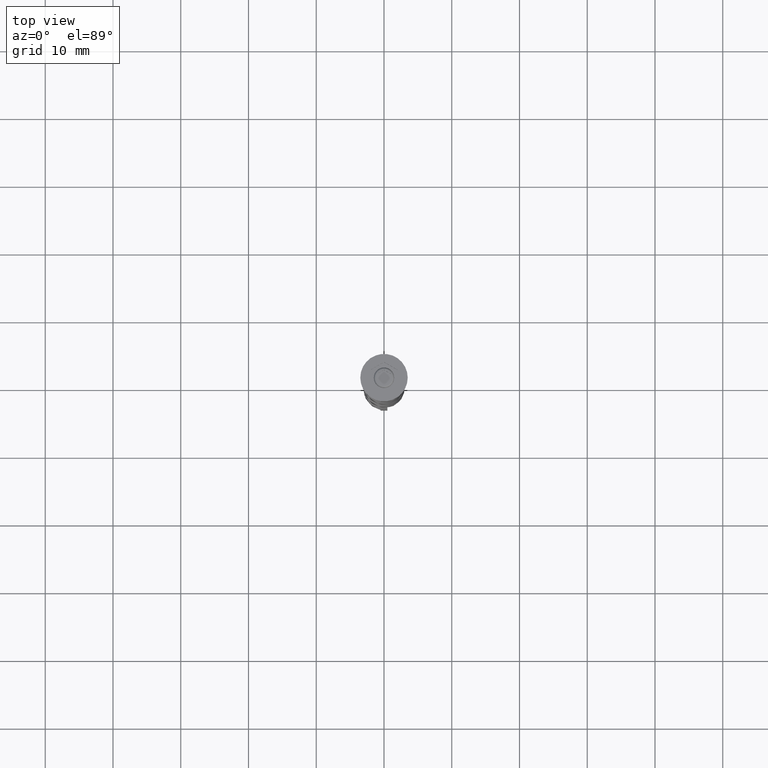
[diagram: clean part render]
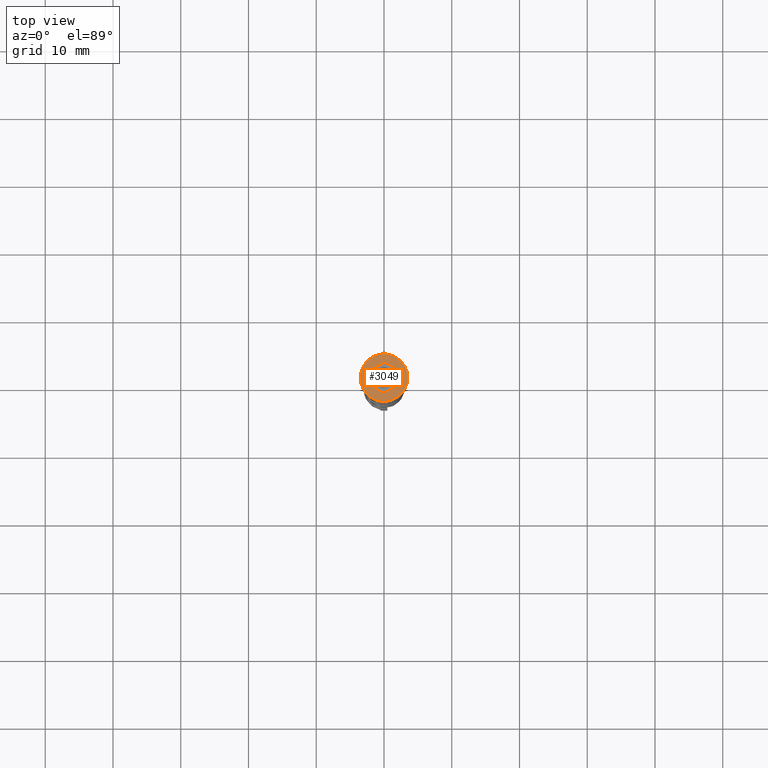
[diagram: same view with one face highlighted and labeled with its STEP entity id]
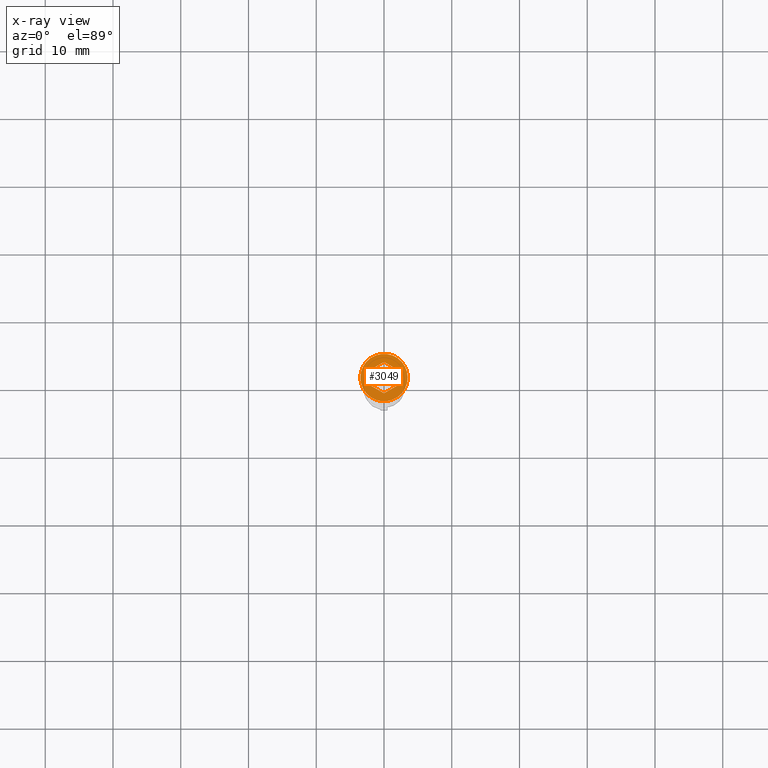
[diagram: x-ray of the same camera — body ghosted, the highlighted face saturated]
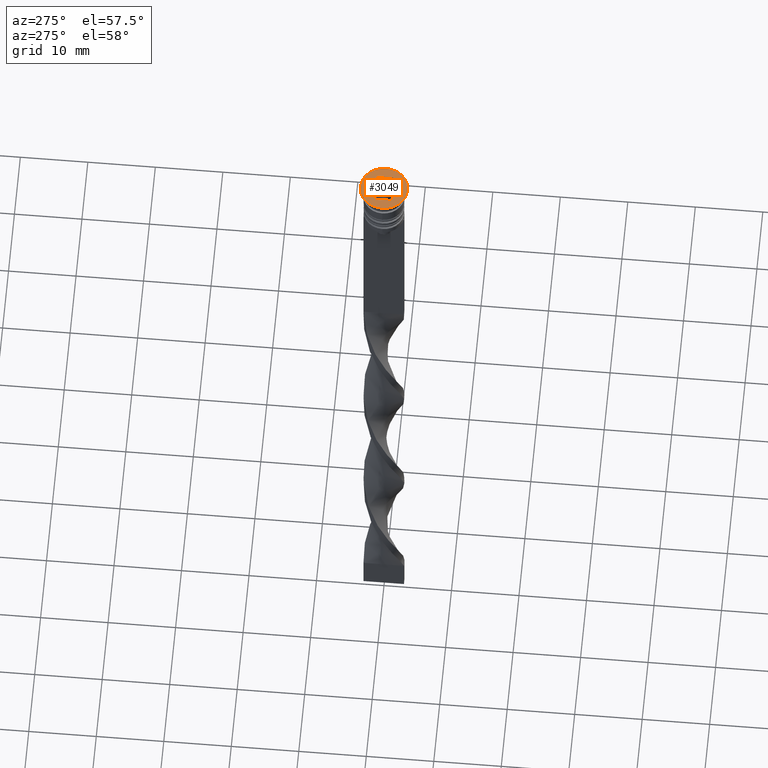
[diagram: same view with one face highlighted and labeled with its STEP entity id]
A machine part, top view. The second image highlights one B-rep face of the part: STEP entity #3049.
The next image is the same camera in x-ray: the body ghosted, the highlighted face saturated — about 0% of this face is hidden behind the body in this view.
A second angle (auxiliary view) of the same face is appended — the face is thin or edge-on in the first view.
In plain terms, the highlighted planar face has unit normal (0, -0, 1).
Its self-contained STEP definition (entity closure, byte-faithful):
#9 = CARTESIAN_POINT ( 'NONE',  ( 0.000000000000000000, 0.000000000000000000, 0.000000000000000000 ) ) ;
#24 = VERTEX_POINT ( 'NONE', #1833 ) ;
#47 = CARTESIAN_POINT ( 'NONE',  ( -2.000000000000000000, -1.154700538379252128, 0.000000000000000000 ) ) ;
#221 = ORIENTED_EDGE ( 'NONE', *, *, #1762, .F. ) ;
#224 = DIRECTION ( 'NONE',  ( 0.000000000000000000, -0.000000000000000000, 1.000000000000000000 ) ) ;
#248 = LINE ( 'NONE', #2435, #3025 ) ;
#281 = DIRECTION ( 'NONE',  ( 1.000000000000000000, 0.000000000000000000, 0.000000000000000000 ) ) ;
#327 = VERTEX_POINT ( 'NONE', #3238 ) ;
#342 = EDGE_CURVE ( 'NONE', #591, #327, #845, .T. ) ;
#487 = CARTESIAN_POINT ( 'NONE',  ( -2.000000000000000000, -1.154700538379252128, 0.000000000000000000 ) ) ;
#582 = LINE ( 'NONE', #47, #2535 ) ;
#590 = CARTESIAN_POINT ( 'NONE',  ( 2.000000000000000000, -1.154700538379251684, 0.000000000000000000 ) ) ;
#591 = VERTEX_POINT ( 'NONE', #2161 ) ;
#622 = ORIENTED_EDGE ( 'NONE', *, *, #1475, .F. ) ;
#768 = CARTESIAN_POINT ( 'NONE',  ( 0.000000000000000000, 0.000000000000000000, 0.000000000000000000 ) ) ;
#770 = CARTESIAN_POINT ( 'NONE',  ( -2.000000000000000000, 1.154700538379251018, 0.000000000000000000 ) ) ;
#845 = LINE ( 'NONE', #590, #2969 ) ;
#1020 = CIRCLE ( 'NONE', #1696, 3.500000000000000000 ) ;
#1022 = EDGE_CURVE ( 'NONE', #24, #1452, #2133, .T. ) ;
#1061 = DIRECTION ( 'NONE',  ( 0.000000000000000000, -1.000000000000000000, 0.000000000000000000 ) ) ;
#1282 = EDGE_LOOP ( 'NONE', ( #2840, #1324 ) ) ;
#1305 = AXIS2_PLACEMENT_3D ( 'NONE', #9, #1870, #281 ) ;
#1324 = ORIENTED_EDGE ( 'NONE', *, *, #2691, .T. ) ;
#1404 = DIRECTION ( 'NONE',  ( 1.000000000000000000, 0.000000000000000000, 0.000000000000000000 ) ) ;
#1432 = EDGE_CURVE ( 'NONE', #1552, #591, #3080, .T. ) ;
#1452 = VERTEX_POINT ( 'NONE', #770 ) ;
#1475 = EDGE_CURVE ( 'NONE', #1452, #1887, #248, .T. ) ;
#1496 = CARTESIAN_POINT ( 'NONE',  ( 3.997386383800531884E-16, -2.309401076758503368, 0.000000000000000000 ) ) ;
#1552 = VERTEX_POINT ( 'NONE', #1908 ) ;
#1654 = DIRECTION ( 'NONE',  ( 0.000000000000000000, 1.000000000000000000, 0.000000000000000000 ) ) ;
#1696 = AXIS2_PLACEMENT_3D ( 'NONE', #1716, #2261, #1404 ) ;
#1716 = CARTESIAN_POINT ( 'NONE',  ( 0.000000000000000000, 0.000000000000000000, 0.000000000000000000 ) ) ;
#1743 = VECTOR ( 'NONE', #2559, 1000.000000000000227 ) ;
#1762 = EDGE_CURVE ( 'NONE', #327, #24, #2728, .T. ) ;
#1815 = DIRECTION ( 'NONE',  ( -0.8660254037844387076, -0.4999999999999999445, 0.000000000000000000 ) ) ;
#1829 = DIRECTION ( 'NONE',  ( 1.000000000000000000, 0.000000000000000000, 0.000000000000000000 ) ) ;
#1833 = CARTESIAN_POINT ( 'NONE',  ( -2.168404344971008868E-16, 2.309401076758502480, 0.000000000000000000 ) ) ;
#1870 = DIRECTION ( 'NONE',  ( -0.000000000000000000, -0.000000000000000000, 1.000000000000000000 ) ) ;
#1887 = VERTEX_POINT ( 'NONE', #487 ) ;
#1908 = CARTESIAN_POINT ( 'NONE',  ( 3.997386383800531884E-16, -2.309401076758503368, 0.000000000000000000 ) ) ;
#1970 = CARTESIAN_POINT ( 'NONE',  ( -3.500000000000000000, 4.286263797015736595E-16, 0.000000000000000000 ) ) ;
#2041 = EDGE_LOOP ( 'NONE', ( #221, #3152, #3262, #2507, #622, #3143 ) ) ;
#2078 = CARTESIAN_POINT ( 'NONE',  ( 0.000000000000000000, 2.309401076758502480, 0.000000000000000000 ) ) ;
#2133 = LINE ( 'NONE', #2078, #3022 ) ;
#2149 = PLANE ( 'NONE',  #2310 ) ;
#2161 = CARTESIAN_POINT ( 'NONE',  ( 2.000000000000000000, -1.154700538379251684, 0.000000000000000000 ) ) ;
#2198 = VECTOR ( 'NONE', #2258, 1000.000000000000000 ) ;
#2258 = DIRECTION ( 'NONE',  ( -0.8660254037844387076, 0.4999999999999998890, 0.000000000000000000 ) ) ;
#2261 = DIRECTION ( 'NONE',  ( -0.000000000000000000, -0.000000000000000000, 1.000000000000000000 ) ) ;
#2279 = CARTESIAN_POINT ( 'NONE',  ( 3.500000000000000000, 0.000000000000000000, 0.000000000000000000 ) ) ;
#2310 = AXIS2_PLACEMENT_3D ( 'NONE', #768, #224, #1829 ) ;
#2377 = FACE_OUTER_BOUND ( 'NONE', #1282, .T. ) ;
#2425 = CIRCLE ( 'NONE', #1305, 3.500000000000000000 ) ;
#2435 = CARTESIAN_POINT ( 'NONE',  ( -2.000000000000000000, 1.154700538379251018, 0.000000000000000000 ) ) ;
#2437 = EDGE_CURVE ( 'NONE', #2987, #3400, #1020, .T. ) ;
#2507 = ORIENTED_EDGE ( 'NONE', *, *, #2579, .F. ) ;
#2535 = VECTOR ( 'NONE', #3440, 1000.000000000000114 ) ;
#2559 = DIRECTION ( 'NONE',  ( 0.8660254037844384856, 0.5000000000000001110, 0.000000000000000000 ) ) ;
#2579 = EDGE_CURVE ( 'NONE', #1887, #1552, #582, .T. ) ;
#2585 = FACE_BOUND ( 'NONE', #2041, .T. ) ;
#2691 = EDGE_CURVE ( 'NONE', #3400, #2987, #2425, .T. ) ;
#2728 = LINE ( 'NONE', #3003, #2198 ) ;
#2840 = ORIENTED_EDGE ( 'NONE', *, *, #2437, .T. ) ;
#2969 = VECTOR ( 'NONE', #1654, 1000.000000000000000 ) ;
#2987 = VERTEX_POINT ( 'NONE', #2279 ) ;
#3003 = CARTESIAN_POINT ( 'NONE',  ( 2.000000000000000000, 1.154700538379251240, 0.000000000000000000 ) ) ;
#3022 = VECTOR ( 'NONE', #1815, 1000.000000000000000 ) ;
#3025 = VECTOR ( 'NONE', #1061, 1000.000000000000000 ) ;
#3049 = ADVANCED_FACE ( 'NONE', ( #2585, #2377 ), #2149, .T. ) ;
#3080 = LINE ( 'NONE', #1496, #1743 ) ;
#3143 = ORIENTED_EDGE ( 'NONE', *, *, #1022, .F. ) ;
#3152 = ORIENTED_EDGE ( 'NONE', *, *, #342, .F. ) ;
#3238 = CARTESIAN_POINT ( 'NONE',  ( 2.000000000000000000, 1.154700538379251240, 0.000000000000000000 ) ) ;
#3262 = ORIENTED_EDGE ( 'NONE', *, *, #1432, .F. ) ;
#3400 = VERTEX_POINT ( 'NONE', #1970 ) ;
#3440 = DIRECTION ( 'NONE',  ( 0.8660254037844387076, -0.4999999999999997780, 0.000000000000000000 ) ) ;